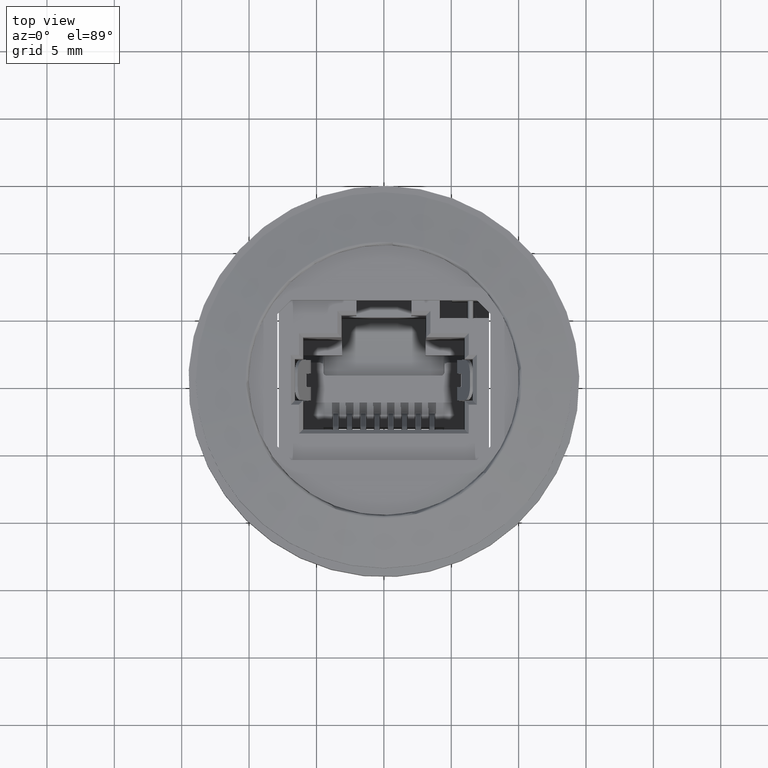
[diagram: clean part render]
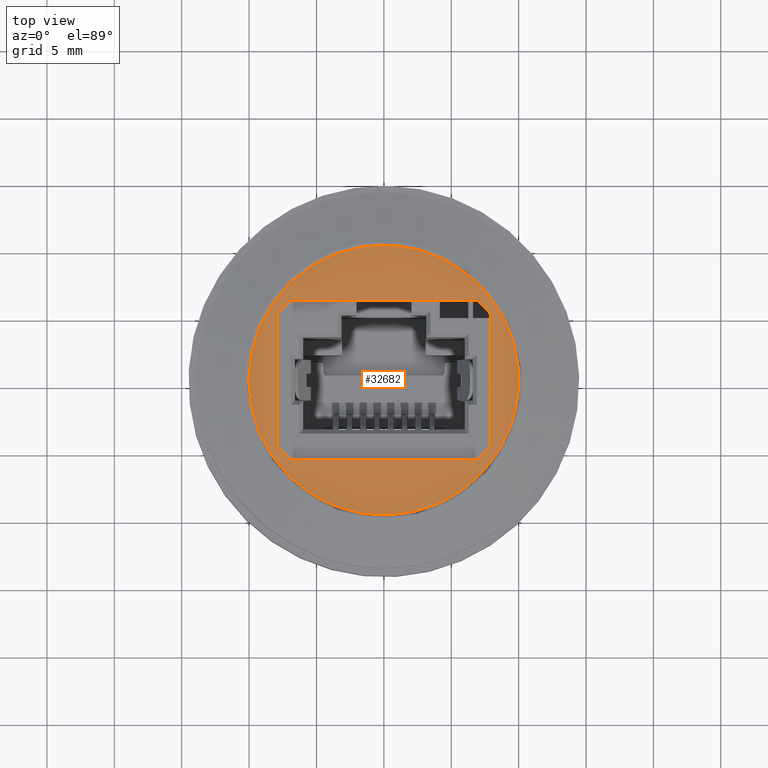
[diagram: same view with one face highlighted and labeled with its STEP entity id]
A machine part, top view. The second image highlights one B-rep face of the part: STEP entity #32682.
In plain terms, the highlighted planar face has unit normal (0, 0, 1).
Its self-contained STEP definition (entity closure, byte-faithful):
#558=FACE_BOUND('',#4893,.T.);
#1793=CIRCLE('',#35267,1.0025);
#3255=FACE_OUTER_BOUND('',#4892,.T.);
#4892=EDGE_LOOP('',(#27692));
#4893=EDGE_LOOP('',(#27693,#27694,#27695,#27696,#27697,#27698,#27699,#27700));
#8237=LINE('',#52146,#11586);
#8238=LINE('',#52148,#11587);
#8239=LINE('',#52150,#11588);
#8240=LINE('',#52152,#11589);
#8241=LINE('',#52154,#11590);
#8242=LINE('',#52156,#11591);
#8243=LINE('',#52158,#11592);
#8244=LINE('',#52159,#11593);
#11586=VECTOR('',#43398,1.);
#11587=VECTOR('',#43399,1.);
#11588=VECTOR('',#43400,1.);
#11589=VECTOR('',#43401,1.);
#11590=VECTOR('',#43402,1.);
#11591=VECTOR('',#43403,1.);
#11592=VECTOR('',#43404,1.);
#11593=VECTOR('',#43405,1.);
#14435=VERTEX_POINT('',#52142);
#14436=VERTEX_POINT('',#52144);
#14437=VERTEX_POINT('',#52145);
#14438=VERTEX_POINT('',#52147);
#14439=VERTEX_POINT('',#52149);
#14440=VERTEX_POINT('',#52151);
#14441=VERTEX_POINT('',#52153);
#14442=VERTEX_POINT('',#52155);
#14443=VERTEX_POINT('',#52157);
#18903=EDGE_CURVE('',#14435,#14435,#1793,.T.);
#18904=EDGE_CURVE('',#14436,#14437,#8237,.T.);
#18905=EDGE_CURVE('',#14437,#14438,#8238,.T.);
#18906=EDGE_CURVE('',#14438,#14439,#8239,.T.);
#18907=EDGE_CURVE('',#14439,#14440,#8240,.T.);
#18908=EDGE_CURVE('',#14440,#14441,#8241,.T.);
#18909=EDGE_CURVE('',#14441,#14442,#8242,.T.);
#18910=EDGE_CURVE('',#14442,#14443,#8243,.T.);
#18911=EDGE_CURVE('',#14443,#14436,#8244,.T.);
#27692=ORIENTED_EDGE('',*,*,#18903,.T.);
#27693=ORIENTED_EDGE('',*,*,#18904,.T.);
#27694=ORIENTED_EDGE('',*,*,#18905,.T.);
#27695=ORIENTED_EDGE('',*,*,#18906,.T.);
#27696=ORIENTED_EDGE('',*,*,#18907,.T.);
#27697=ORIENTED_EDGE('',*,*,#18908,.T.);
#27698=ORIENTED_EDGE('',*,*,#18909,.T.);
#27699=ORIENTED_EDGE('',*,*,#18910,.T.);
#27700=ORIENTED_EDGE('',*,*,#18911,.T.);
#29645=PLANE('',#35266);
#32682=ADVANCED_FACE('',(#3255,#558),#29645,.T.);
#35266=AXIS2_PLACEMENT_3D('',#52141,#43394,#43395);
#35267=AXIS2_PLACEMENT_3D('',#52143,#43396,#43397);
#43394=DIRECTION('center_axis',(0.,0.,1.));
#43395=DIRECTION('ref_axis',(0.,1.,0.));
#43396=DIRECTION('center_axis',(0.,0.,1.));
#43397=DIRECTION('ref_axis',(1.,0.,0.));
#43398=DIRECTION('',(0.707106781186547,0.707106781186548,0.));
#43399=DIRECTION('',(1.,0.,0.));
#43400=DIRECTION('',(0.707106781186548,-0.707106781186547,0.));
#43401=DIRECTION('',(2.25425994847748E-16,-1.,0.));
#43402=DIRECTION('',(-0.707106781186547,-0.707106781186548,0.));
#43403=DIRECTION('',(-1.,-4.02254719067085E-16,0.));
#43404=DIRECTION('',(-0.707106781186548,0.707106781186547,0.));
#43405=DIRECTION('',(4.50851989695495E-16,1.,0.));
#52141=CARTESIAN_POINT('Origin',(0.50125,0.,0.980000000000003));
#52142=CARTESIAN_POINT('',(-1.0025,-1.22770841614522E-16,0.980000000000003));
#52143=CARTESIAN_POINT('Origin',(0.,0.,0.980000000000003));
#52144=CARTESIAN_POINT('',(-0.789999999999988,0.492499999999999,0.980000000000003));
#52145=CARTESIAN_POINT('',(-0.689999999999988,0.592499999999999,0.980000000000003));
#52146=CARTESIAN_POINT('',(-0.540312499999992,0.742187499999996,0.980000000000003));
#52147=CARTESIAN_POINT('',(0.690000000000011,0.592499999999999,0.980000000000003));
#52148=CARTESIAN_POINT('',(0.595625000000006,0.592499999999999,0.980000000000003));
#52149=CARTESIAN_POINT('',(0.790000000000011,0.4925,0.980000000000003));
#52150=CARTESIAN_POINT('',(0.840937500000008,0.441562500000003,0.980000000000003));
#52151=CARTESIAN_POINT('',(0.790000000000011,-0.492500000000001,0.980000000000003));
#52152=CARTESIAN_POINT('',(0.790000000000011,-0.24625,0.980000000000003));
#52153=CARTESIAN_POINT('',(0.690000000000012,-0.5925,0.980000000000003));
#52154=CARTESIAN_POINT('',(0.790937500000009,-0.491562500000003,0.980000000000003));
#52155=CARTESIAN_POINT('',(-0.689999999999989,-0.592500000000001,0.980000000000003));
#52156=CARTESIAN_POINT('',(-0.0943749999999945,-0.592500000000001,0.980000000000003));
#52157=CARTESIAN_POINT('',(-0.789999999999989,-0.492500000000001,0.980000000000003));
#52158=CARTESIAN_POINT('',(-0.590312499999992,-0.692187499999998,0.980000000000003));
#52159=CARTESIAN_POINT('',(-0.789999999999989,0.24625,0.980000000000003));